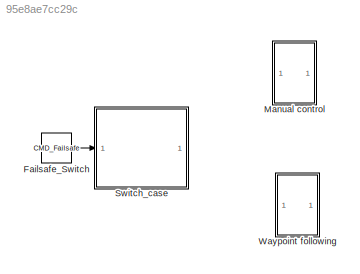
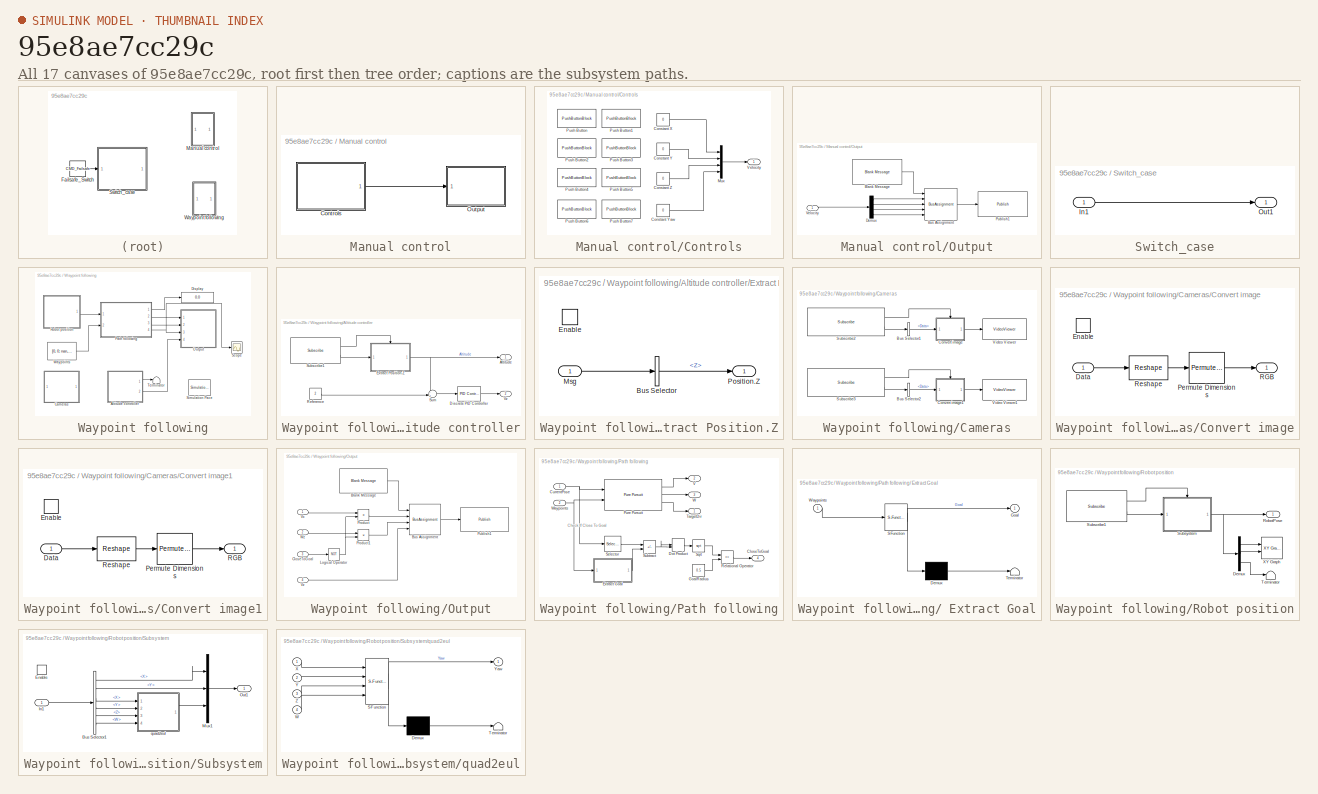
[diagram: thumbnail index - all 17 canvases of the model, root first then tree order]
MODEL slx_95e8ae7cc29c
KIND model
CONFIG AbsTol = auto
CONFIG EnableMultiTasking = on
CONFIG FixedStep = 0.1
CONFIG MaxStep = auto
CONFIG MinStep = auto
CONFIG RelTol = 1e-3
CONFIG SampleTimeConstraint = Unconstrained
CONFIG SolverName = FixedStepDiscrete
CONFIG StartTime = 0.0
CONFIG StopTime = Inf
WORKSPACE source: mxarray member
WORKSPACE SL_ROS_VariableLengthArrays_MaxSizes: object (value not decoded)
BLOCK [Constant] Failsafe_Switch
  Value = CMD_Failsafe
BLOCK [SubSystem] Manual control
  Ports = []
  RequestExecContextInheritance = off
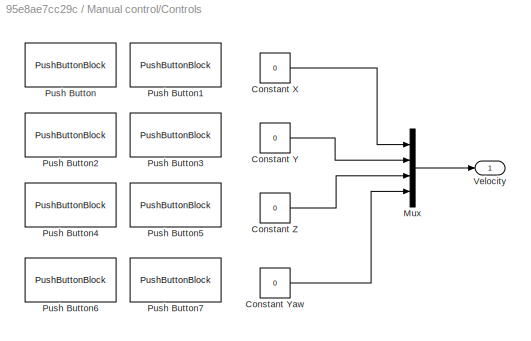
BLOCK [SubSystem] Manual control/Controls
  Ports = [0, 1]
  RequestExecContextInheritance = off
BLOCK [Constant] Manual control/Controls/Constant X
  Value = 0
BLOCK [Constant] Manual control/Controls/Constant Y
  Value = 0
BLOCK [Constant] Manual control/Controls/Constant Yaw
  Value = 0
BLOCK [Constant] Manual control/Controls/Constant Z
  Value = 0
BLOCK [Mux] Manual control/Controls/Mux
  DisplayOption = bar
  Ports = [4, 1]
BLOCK [PushButtonBlock] Manual control/Controls/Push Button
  ButtonText = Backward
  LabelPosition = Top
  OnValue = -1
BLOCK [PushButtonBlock] Manual control/Controls/Push Button1
  ButtonText = Forward
  LabelPosition = Top
BLOCK [PushButtonBlock] Manual control/Controls/Push Button2
  ButtonText = Left
  LabelPosition = Top
BLOCK [PushButtonBlock] Manual control/Controls/Push Button3
  ButtonText = Right
  LabelPosition = Top
  OnValue = -1
BLOCK [PushButtonBlock] Manual control/Controls/Push Button4
  ButtonText = Down
  LabelPosition = Top
  OnValue = -1
BLOCK [PushButtonBlock] Manual control/Controls/Push Button5
  ButtonText = Up
  LabelPosition = Top
BLOCK [PushButtonBlock] Manual control/Controls/Push Button6
  ButtonText = Counterclockwise
  LabelPosition = Top
BLOCK [PushButtonBlock] Manual control/Controls/Push Button7
  ButtonText = Clockwise
  LabelPosition = Top
  OnValue = -1
BLOCK [Outport] Manual control/Controls/Velocity
BLOCK [SubSystem] Manual control/Output
  Ports = [1]
  RequestExecContextInheritance = off
BLOCK [Reference] Manual control/Output/Blank Message  REF=robotlib/Blank Message
  Ports = [0, 1]
  SourceBlock = robotlib/Blank Message
  SourceProductBaseCode = RR
  SourceType = ROS Blank Message
BLOCK [BusAssignment] Manual control/Output/Bus Assignment
  AssignedSignals = Linear.X,Linear.Y,Linear.Z,Angular.Z
  DialogController = Simulink.DDGSource_BusAssignment
  Ports = [5, 1]
BLOCK [Demux] Manual control/Output/Demux
  Ports = [1, 4]
BLOCK [Reference] Manual control/Output/Publish1  REF=robotlib/Publish
  Ports = [1]
  SourceBlock = robotlib/Publish
  SourceProductBaseCode = RR
  SourceType = ROS Publish
BLOCK [Inport] Manual control/Output/Velocity
BLOCK [SubSystem] Switch_case
  Ports = [1, 1]
  RequestExecContextInheritance = off
BLOCK [Inport] Switch_case/In1
BLOCK [Outport] Switch_case/Out1
BLOCK [SubSystem] Waypoint following
  Commented = on
  Ports = []
  RequestExecContextInheritance = off
BLOCK [SubSystem] Waypoint following/Altitude controller
  Ports = [0, 2]
  RequestExecContextInheritance = off
BLOCK [Outport] Waypoint following/Altitude controller/Altitude
BLOCK [Reference] Waypoint following/Altitude controller/Discrete PID Controller  REF=pid_lib/PID Controller
  Ports = [1, 1]
  SourceBlock = pid_lib/PID Controller
  SourceProductBaseCode = SL
  SourceType = PID 1dof
BLOCK [SubSystem] Waypoint following/Altitude controller/Extract Position.Z
  Ports = [1, 1, 1]
  RequestExecContextInheritance = off
BLOCK [BusSelector] Waypoint following/Altitude controller/Extract Position.Z/Bus Selector
  OutputSignals = Pose.Pose.Position.Z
  Ports = [1, 1]
BLOCK [EnablePort] Waypoint following/Altitude controller/Extract Position.Z/Enable
  Ports = []
BLOCK [Inport] Waypoint following/Altitude controller/Extract Position.Z/Msg
BLOCK [Outport] Waypoint following/Altitude controller/Extract Position.Z/Position.Z
BLOCK [Constant] Waypoint following/Altitude controller/Reference
  Value = 2
BLOCK [Reference] Waypoint following/Altitude controller/Subscribe1  REF=robotlib/Subscribe
  Ports = [0, 2]
  SourceBlock = robotlib/Subscribe
  SourceProductBaseCode = RR
  SourceType = ROS Subscribe
BLOCK [Sum] Waypoint following/Altitude controller/Sum
  Inputs = -+|
  Ports = [2, 1]
BLOCK [Outport] Waypoint following/Altitude controller/Vz
  Port = 2
BLOCK [SubSystem] Waypoint following/Cameras
  Ports = []
  RequestExecContextInheritance = off
BLOCK [BusSelector] Waypoint following/Cameras/Bus Selector1
  DialogController = Simulink.DDGSource_BusSelector
  OutputSignals = Data
  Ports = [1, 1]
BLOCK [BusSelector] Waypoint following/Cameras/Bus Selector2
  DialogController = Simulink.DDGSource_BusSelector
  OutputSignals = Data
  Ports = [1, 1]
BLOCK [SubSystem] Waypoint following/Cameras/Convert image
  Ports = [1, 1, 1]
  RequestExecContextInheritance = off
BLOCK [Inport] Waypoint following/Cameras/Convert image/Data
BLOCK [EnablePort] Waypoint following/Cameras/Convert image/Enable
  Ports = []
BLOCK [PermuteDimensions] Waypoint following/Cameras/Convert image/Permute Dimensions
  Order = [3 2 1]
BLOCK [Outport] Waypoint following/Cameras/Convert image/RGB
BLOCK [Reshape] Waypoint following/Cameras/Convert image/Reshape
  OutputDimensionality = Customize
  OutputDimensions = [3 640 360]
  Ports = [1, 1]
BLOCK [SubSystem] Waypoint following/Cameras/Convert image1
  Ports = [1, 1, 1]
  RequestExecContextInheritance = off
BLOCK [Inport] Waypoint following/Cameras/Convert image1/Data
BLOCK [EnablePort] Waypoint following/Cameras/Convert image1/Enable
  Ports = []
BLOCK [PermuteDimensions] Waypoint following/Cameras/Convert image1/Permute Dimensions
  Order = [3 2 1]
BLOCK [Outport] Waypoint following/Cameras/Convert image1/RGB
BLOCK [Reshape] Waypoint following/Cameras/Convert image1/Reshape
  OutputDimensionality = Customize
  OutputDimensions = [3 640 360]
  Ports = [1, 1]
BLOCK [Reference] Waypoint following/Cameras/Subscribe2  REF=robotlib/Subscribe
  Ports = [0, 2]
  SourceBlock = robotlib/Subscribe
  SourceProductBaseCode = RR
  SourceType = ROS Subscribe
BLOCK [Reference] Waypoint following/Cameras/Subscribe3  REF=robotlib/Subscribe
  Ports = [0, 2]
  SourceBlock = robotlib/Subscribe
  SourceProductBaseCode = RR
  SourceType = ROS Subscribe
BLOCK [VideoViewer] Waypoint following/Cameras/Video Viewer
  FigPos = [814.6 481.2 608.8 376]
  Ports = [1]
  ScopeSpecificationString = vipscopes.VideoViewerScopeCfg('CurrentConfiguration', extmgr.ConfigurationSet(extmgr.Configuration('Core','General UI',true),extmgr.Configuration('Core','Source UI',true),extmgr.Configuration('Sources','WiredSimulink',true),extmgr.Configuration('Visuals','Video',true),extmgr.Configuration('Tools','Image Navigation Tools',true),extmgr.Configuration('Tools','Image Tool',true),extmgr.Configuration('T...<+81ch>
  colormapValue = gray(256)
BLOCK [VideoViewer] Waypoint following/Cameras/Video Viewer1
  FigPos = [-217.4 1067.6 609.6 376.8]
  Ports = [1]
  ScopeSpecificationString = vipscopes.VideoViewerScopeCfg('CurrentConfiguration', extmgr.ConfigurationSet(extmgr.Configuration('Core','General UI',true),extmgr.Configuration('Core','Source UI',true),extmgr.Configuration('Sources','WiredSimulink',true),extmgr.Configuration('Visuals','Video',true),extmgr.Configuration('Tools','Image Navigation Tools',true),extmgr.Configuration('Tools','Image Tool',true),extmgr.Configuration('T...<+85ch>
  colormapValue = gray(256)
BLOCK [Display] Waypoint following/Display
  Decimation = 1
  Ports = [1]
BLOCK [SubSystem] Waypoint following/Output
  Ports = [4]
  RequestExecContextInheritance = off
BLOCK [Reference] Waypoint following/Output/Blank Message  REF=robotlib/Blank Message
  Ports = [0, 1]
  SourceBlock = robotlib/Blank Message
  SourceProductBaseCode = RR
  SourceType = ROS Blank Message
BLOCK [BusAssignment] Waypoint following/Output/Bus Assignment
  AssignedSignals = Linear.X,Angular.Z,Linear.Z
  DialogController = Simulink.DDGSource_BusAssignment
  Ports = [4, 1]
BLOCK [Inport] Waypoint following/Output/CloseToGoal
  Port = 3
BLOCK [Logic] Waypoint following/Output/Logical Operator
  AllPortsSameDT = off
  Operator = NOT
  OutDataTypeStr = boolean
  Ports = [1, 1]
BLOCK [Product] Waypoint following/Output/Product
  Ports = [2, 1]
BLOCK [Product] Waypoint following/Output/Product1
  Ports = [2, 1]
BLOCK [Reference] Waypoint following/Output/Publish1  REF=robotlib/Publish
  Ports = [1]
  SourceBlock = robotlib/Publish
  SourceProductBaseCode = RR
  SourceType = ROS Publish
BLOCK [Inport] Waypoint following/Output/Vx
BLOCK [Inport] Waypoint following/Output/Vz
  Port = 4
BLOCK [Inport] Waypoint following/Output/Wz
  Port = 2
BLOCK [SubSystem] Waypoint following/Path following
  Ports = [2, 4]
  RequestExecContextInheritance = off
BLOCK [SubSystem] Waypoint following/Path following/ Extract Goal
  ErrorFcn = Stateflow.Translate.translate
  PermitHierarchicalResolution = ExplicitOnly
  Ports = [1, 1]
  RequestExecContextInheritance = off
  SFBlockType = MATLAB Function
  TreatAsAtomicUnit = on
BLOCK [Demux] Waypoint following/Path following/ Extract Goal/ Demux 
  Outputs = 1
  Ports = [1, 1]
BLOCK [S-Function] Waypoint following/Path following/ Extract Goal/ SFunction 
  EnableBusSupport = on
  FunctionName = sf_sfun
  PortCounts = [1 2]
  Ports = [1, 2]
  SFcnIsStateOwnerBlock = off
  SFunctionDeploymentMode = off
  Tag = Stateflow S-Function 7
BLOCK [Terminator] Waypoint following/Path following/ Extract Goal/ Terminator 
BLOCK [Outport] Waypoint following/Path following/ Extract Goal/Goal
BLOCK [Inport] Waypoint following/Path following/ Extract Goal/Waypoints
BLOCK [Outport] Waypoint following/Path following/CloseToGoal
  Port = 4
BLOCK [Inport] Waypoint following/Path following/CurrentPose
BLOCK [DotProduct] Waypoint following/Path following/Dot Product
  OutDataTypeStr = Inherit: Inherit via internal rule
BLOCK [Constant] Waypoint following/Path following/GoalRadius
  Value = 0.5
BLOCK [Reference] Waypoint following/Path following/Pure Pursuit  REF=robotalgslib/Pure Pursuit
  Ports = [2, 3]
  SourceBlock = robotalgslib/Pure Pursuit
  SourceProductBaseCode = NV,RO
  SourceType = nav.slalgs.internal.PurePursuit
BLOCK [RelationalOperator] Waypoint following/Path following/Relational Operator
  InputSameDT = off
  Operator = <=
  OutDataTypeStr = boolean
  Ports = [2, 1]
  RndMeth = Simplest
BLOCK [Selector] Waypoint following/Path following/Selector
  IndexOptions = Index vector (dialog)
  Indices = [1 2]
  InputPortWidth = 3
  OutputSizes = 1
  Ports = [1, 1]
BLOCK [Sqrt] Waypoint following/Path following/Sqrt
BLOCK [Sum] Waypoint following/Path following/Subtract
  IconShape = rectangular
  Inputs = +-
  Ports = [2, 1]
BLOCK [Outport] Waypoint following/Path following/TargetDir
BLOCK [Outport] Waypoint following/Path following/V
  Port = 2
BLOCK [Outport] Waypoint following/Path following/W
  Port = 3
BLOCK [Inport] Waypoint following/Path following/Waypoints
  Port = 2
BLOCK [SubSystem] Waypoint following/Robot position
  Ports = [0, 1]
  RequestExecContextInheritance = off
BLOCK [Demux] Waypoint following/Robot position/Demux
  Outputs = 3
  Ports = [1, 3]
BLOCK [Outport] Waypoint following/Robot position/RobotPose
BLOCK [Reference] Waypoint following/Robot position/Subscribe1  REF=robotlib/Subscribe
  Ports = [0, 2]
  SourceBlock = robotlib/Subscribe
  SourceProductBaseCode = RR
  SourceType = ROS Subscribe
BLOCK [SubSystem] Waypoint following/Robot position/Subsystem
  Ports = [1, 1, 1]
  RequestExecContextInheritance = off
BLOCK [BusSelector] Waypoint following/Robot position/Subsystem/Bus Selector1
  OutputSignals = Pose.Pose.Position.X,Pose.Pose.Position.Y,Pose.Pose.Orientation.X,Pose.Pose.Orientation.Y,Pose.Pose.Orientation.Z,Pose.Pose.Orientation.W
  Ports = [1, 6]
BLOCK [EnablePort] Waypoint following/Robot position/Subsystem/Enable
  Ports = []
BLOCK [Inport] Waypoint following/Robot position/Subsystem/In1
BLOCK [Mux] Waypoint following/Robot position/Subsystem/Mux1
  DisplayOption = bar
  Inputs = 3
  Ports = [3, 1]
BLOCK [Outport] Waypoint following/Robot position/Subsystem/Out1
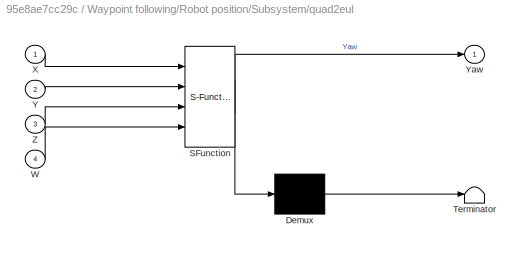
BLOCK [SubSystem] Waypoint following/Robot position/Subsystem/quad2eul
  ErrorFcn = Stateflow.Translate.translate
  PermitHierarchicalResolution = ExplicitOnly
  Ports = [4, 1]
  RequestExecContextInheritance = off
  SFBlockType = MATLAB Function
  TreatAsAtomicUnit = on
BLOCK [Demux] Waypoint following/Robot position/Subsystem/quad2eul/ Demux 
  Outputs = 1
  Ports = [1, 1]
BLOCK [S-Function] Waypoint following/Robot position/Subsystem/quad2eul/ SFunction 
  EnableBusSupport = on
  FunctionName = sf_sfun
  PortCounts = [4 2]
  Ports = [4, 2]
  SFcnIsStateOwnerBlock = off
  SFunctionDeploymentMode = off
  Tag = Stateflow S-Function 1
BLOCK [Terminator] Waypoint following/Robot position/Subsystem/quad2eul/ Terminator 
BLOCK [Inport] Waypoint following/Robot position/Subsystem/quad2eul/W
  Port = 4
BLOCK [Inport] Waypoint following/Robot position/Subsystem/quad2eul/X
BLOCK [Inport] Waypoint following/Robot position/Subsystem/quad2eul/Y
  Port = 2
BLOCK [Outport] Waypoint following/Robot position/Subsystem/quad2eul/Yaw
BLOCK [Inport] Waypoint following/Robot position/Subsystem/quad2eul/Z
  Port = 3
BLOCK [Terminator] Waypoint following/Robot position/Terminator
BLOCK [Reference] Waypoint following/Robot position/XY Graph  REF=simulink/Sinks/XY Graph
  Ports = [2]
  SourceBlock = simulink/Sinks/XY Graph
  SourceProductBaseCode = SL
  SourceType = XY scope.
BLOCK [Scope] Waypoint following/Scope
  Floating = off
  NumInputPorts = 1
  Ports = [1]
  ScopeSpecificationString = Simulink.scopes.TimeScopeBlockCfg('CurrentConfiguration', extmgr.ConfigurationSet(extmgr.Configuration('Core','General UI',true),extmgr.Configuration('Core','Source UI',true),extmgr.Configuration('Sources','WiredSimulink',true),extmgr.Configuration('Visuals','Time Domain',true,'SerializedDisplays',{struct('MinYLimReal','-0.23529','MaxYLimReal','0.17865','YLabelReal','','MinYLimMag','0.00000','MaxY...<+1388ch>
BLOCK [Reference] Waypoint following/Simulation Pace  REF=aerolibanimutils/Simulation Pace
  AttributesFormatString = %<SleepMode>\n%<SimulationPace> sec/sec
  Ports = []
  SourceBlock = aerolibanimutils/Simulation Pace
  SourceProductBaseCode = AE
  SourceType = Simulation Pace
BLOCK [Terminator] Waypoint following/Terminator
BLOCK [Constant] Waypoint following/Waypoints
  OutDataTypeStr = double
  Value = [0, 0; nan, nan]
ANNOTATION Waypoint following/Path following: Check If Close To Goal
LINE Failsafe_Switch:1 -> Switch_case:1
LINE Manual control/Controls/Constant X:1 -> Manual control/Controls/Mux:1
LINE Manual control/Controls/Constant Y:1 -> Manual control/Controls/Mux:2
LINE Manual control/Controls/Constant Yaw:1 -> Manual control/Controls/Mux:4
LINE Manual control/Controls/Constant Z:1 -> Manual control/Controls/Mux:3
LINE Manual control/Controls/Mux:1 -> Manual control/Controls/Velocity:1
LINE Manual control/Controls:1 -> Manual control/Output:1
LINE Manual control/Output/Blank Message:1 -> Manual control/Output/Bus Assignment:1
LINE Manual control/Output/Bus Assignment:1 -> Manual control/Output/Publish1:1
LINE Manual control/Output/Demux:1 -> Manual control/Output/Bus Assignment:2
LINE Manual control/Output/Demux:2 -> Manual control/Output/Bus Assignment:3
LINE Manual control/Output/Demux:3 -> Manual control/Output/Bus Assignment:4
LINE Manual control/Output/Demux:4 -> Manual control/Output/Bus Assignment:5
LINE Manual control/Output/Velocity:1 -> Manual control/Output/Demux:1
LINE Switch_case/In1:1 -> Switch_case/Out1:1
LINE Waypoint following/Altitude controller/Discrete PID Controller:1 -> Waypoint following/Altitude controller/Vz:1
LINE Waypoint following/Altitude controller/Extract Position.Z/Bus Selector:1 -> Waypoint following/Altitude controller/Extract Position.Z/Position.Z:1
LINE Waypoint following/Altitude controller/Extract Position.Z/Msg:1 -> Waypoint following/Altitude controller/Extract Position.Z/Bus Selector:1
NET Waypoint following/Altitude controller/Extract Position.Z:1 -> Waypoint following/Altitude controller/Altitude:1, Waypoint following/Altitude controller/Sum:1
LINE Waypoint following/Altitude controller/Reference:1 -> Waypoint following/Altitude controller/Sum:2
LINE Waypoint following/Altitude controller/Subscribe1:1 -> Waypoint following/Altitude controller/Extract Position.Z:enable
LINE Waypoint following/Altitude controller/Subscribe1:2 -> Waypoint following/Altitude controller/Extract Position.Z:1
LINE Waypoint following/Altitude controller/Sum:1 -> Waypoint following/Altitude controller/Discrete PID Controller:1
LINE Waypoint following/Altitude controller:1 -> Waypoint following/Terminator:1
LINE Waypoint following/Altitude controller:2 -> Waypoint following/Output:4
LINE Waypoint following/Cameras/Bus Selector1:1 -> Waypoint following/Cameras/Convert image:1
LINE Waypoint following/Cameras/Bus Selector2:1 -> Waypoint following/Cameras/Convert image1:1
LINE Waypoint following/Cameras/Convert image/Data:1 -> Waypoint following/Cameras/Convert image/Reshape:1
LINE Waypoint following/Cameras/Convert image/Permute Dimensions:1 -> Waypoint following/Cameras/Convert image/RGB:1
LINE Waypoint following/Cameras/Convert image/Reshape:1 -> Waypoint following/Cameras/Convert image/Permute Dimensions:1
LINE Waypoint following/Cameras/Convert image1/Data:1 -> Waypoint following/Cameras/Convert image1/Reshape:1
LINE Waypoint following/Cameras/Convert image1/Permute Dimensions:1 -> Waypoint following/Cameras/Convert image1/RGB:1
LINE Waypoint following/Cameras/Convert image1/Reshape:1 -> Waypoint following/Cameras/Convert image1/Permute Dimensions:1
LINE Waypoint following/Cameras/Convert image1:1 -> Waypoint following/Cameras/Video Viewer1:1
LINE Waypoint following/Cameras/Convert image:1 -> Waypoint following/Cameras/Video Viewer:1
LINE Waypoint following/Cameras/Subscribe2:1 -> Waypoint following/Cameras/Convert image:enable
LINE Waypoint following/Cameras/Subscribe2:2 -> Waypoint following/Cameras/Bus Selector1:1
LINE Waypoint following/Cameras/Subscribe3:1 -> Waypoint following/Cameras/Convert image1:enable
LINE Waypoint following/Cameras/Subscribe3:2 -> Waypoint following/Cameras/Bus Selector2:1
LINE Waypoint following/Output/Blank Message:1 -> Waypoint following/Output/Bus Assignment:1
LINE Waypoint following/Output/Bus Assignment:1 -> Waypoint following/Output/Publish1:1
LINE Waypoint following/Output/CloseToGoal:1 -> Waypoint following/Output/Logical Operator:1
NET Waypoint following/Output/Logical Operator:1 -> Waypoint following/Output/Product1:2, Waypoint following/Output/Product:2
LINE Waypoint following/Output/Product1:1 -> Waypoint following/Output/Bus Assignment:3
LINE Waypoint following/Output/Product:1 -> Waypoint following/Output/Bus Assignment:2
LINE Waypoint following/Output/Vx:1 -> Waypoint following/Output/Product:1
LINE Waypoint following/Output/Vz:1 -> Waypoint following/Output/Bus Assignment:4
LINE Waypoint following/Output/Wz:1 -> Waypoint following/Output/Product1:1
LINE Waypoint following/Path following/ Extract Goal:1 -> Waypoint following/Path following/Subtract:2
NET Waypoint following/Path following/CurrentPose:1 -> Waypoint following/Path following/Pure Pursuit:1, Waypoint following/Path following/Selector:1
LINE Waypoint following/Path following/Dot Product:1 -> Waypoint following/Path following/Sqrt:1
LINE Waypoint following/Path following/GoalRadius:1 -> Waypoint following/Path following/Relational Operator:2
LINE Waypoint following/Path following/Pure Pursuit:1 -> Waypoint following/Path following/V:1
LINE Waypoint following/Path following/Pure Pursuit:2 -> Waypoint following/Path following/W:1
LINE Waypoint following/Path following/Pure Pursuit:3 -> Waypoint following/Path following/TargetDir:1
LINE Waypoint following/Path following/Relational Operator:1 -> Waypoint following/Path following/CloseToGoal:1
LINE Waypoint following/Path following/Selector:1 -> Waypoint following/Path following/Subtract:1
LINE Waypoint following/Path following/Sqrt:1 -> Waypoint following/Path following/Relational Operator:1
NET Waypoint following/Path following/Subtract:1 -> Waypoint following/Path following/Dot Product:1, Waypoint following/Path following/Dot Product:2
NET Waypoint following/Path following/Waypoints:1 -> Waypoint following/Path following/ Extract Goal:1, Waypoint following/Path following/Pure Pursuit:2
LINE Waypoint following/Path following:1 -> Waypoint following/Display:1
LINE Waypoint following/Path following:2 -> Waypoint following/Output:1
LINE Waypoint following/Path following:3 -> Waypoint following/Output:2
NET Waypoint following/Path following:4 -> Waypoint following/Output:3, Waypoint following/Scope:1
LINE Waypoint following/Robot position/Demux:1 -> Waypoint following/Robot position/XY Graph:1
LINE Waypoint following/Robot position/Demux:2 -> Waypoint following/Robot position/XY Graph:2
LINE Waypoint following/Robot position/Demux:3 -> Waypoint following/Robot position/Terminator:1
LINE Waypoint following/Robot position/Subscribe1:1 -> Waypoint following/Robot position/Subsystem:enable
LINE Waypoint following/Robot position/Subscribe1:2 -> Waypoint following/Robot position/Subsystem:1
LINE Waypoint following/Robot position/Subsystem/Bus Selector1:1 -> Waypoint following/Robot position/Subsystem/Mux1:1
LINE Waypoint following/Robot position/Subsystem/Bus Selector1:2 -> Waypoint following/Robot position/Subsystem/Mux1:2
LINE Waypoint following/Robot position/Subsystem/Bus Selector1:3 -> Waypoint following/Robot position/Subsystem/quad2eul:1
LINE Waypoint following/Robot position/Subsystem/Bus Selector1:4 -> Waypoint following/Robot position/Subsystem/quad2eul:2
LINE Waypoint following/Robot position/Subsystem/Bus Selector1:5 -> Waypoint following/Robot position/Subsystem/quad2eul:3
LINE Waypoint following/Robot position/Subsystem/Bus Selector1:6 -> Waypoint following/Robot position/Subsystem/quad2eul:4
LINE Waypoint following/Robot position/Subsystem/In1:1 -> Waypoint following/Robot position/Subsystem/Bus Selector1:1
LINE Waypoint following/Robot position/Subsystem/Mux1:1 -> Waypoint following/Robot position/Subsystem/Out1:1
LINE Waypoint following/Robot position/Subsystem/quad2eul:1 -> Waypoint following/Robot position/Subsystem/Mux1:3
NET Waypoint following/Robot position/Subsystem:1 -> Waypoint following/Robot position/Demux:1, Waypoint following/Robot position/RobotPose:1
LINE Waypoint following/Robot position:1 -> Waypoint following/Path following:1
LINE Waypoint following/Waypoints:1 -> Waypoint following/Path following:2
note: NET lines group one-source signal fan-out (src -> all destinations, sorted); 1:1 wires keep LINE
CHART Waypoint following/Robot position/Subsystem/quad2eul states=1 transitions=1
  STATE_LABEL 'eML_blk_kernel()'
  STATE_LABEL 'SCRIPT:\nfunction Yaw = quat2eulBlk(X, Y, Z, W)\n%#codegen\n\neularAngles = quat2eul([W, X, Y, Z]);\nYaw = eularAngles(1);'
CHART Waypoint following/Path following/ Extract Goal states=1 transitions=1
  STATE_LABEL 'eML_blk_kernel()'
  STATE_LABEL 'SCRIPT:\nfunction Goal = extractGoal(Waypoints)\n%#codegen\nb = isnan(Waypoints);\n[rows,~] = find(b);\nridx = setdiff(1:size(Waypoints,1), sort(rows));\nGoal = [Waypoints(ridx(end), 1) Waypoints(ridx(end), 2)];'
CHART  states=0 transitions=0
CHART  states=0 transitions=0
